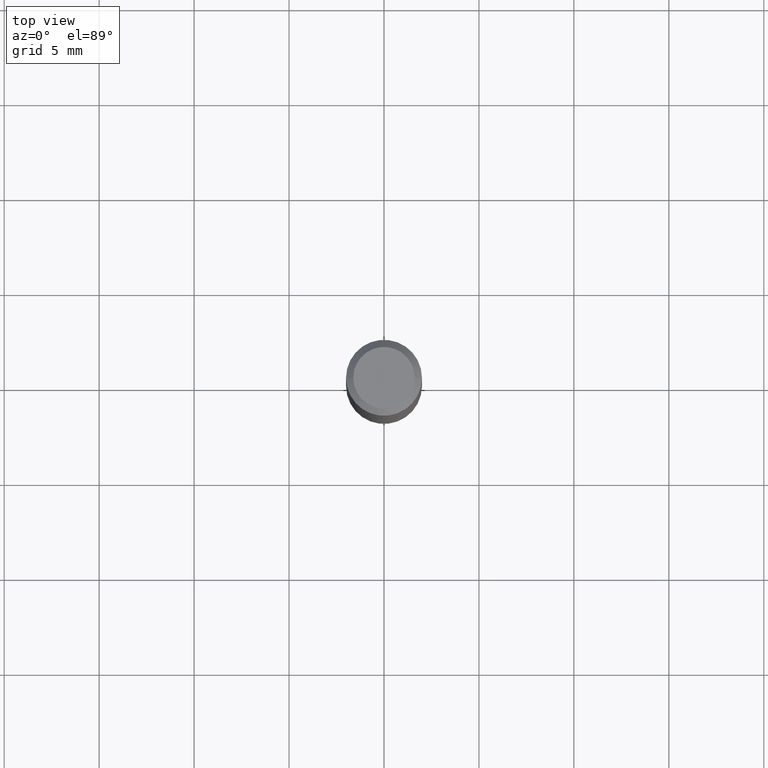
[diagram: clean part render]
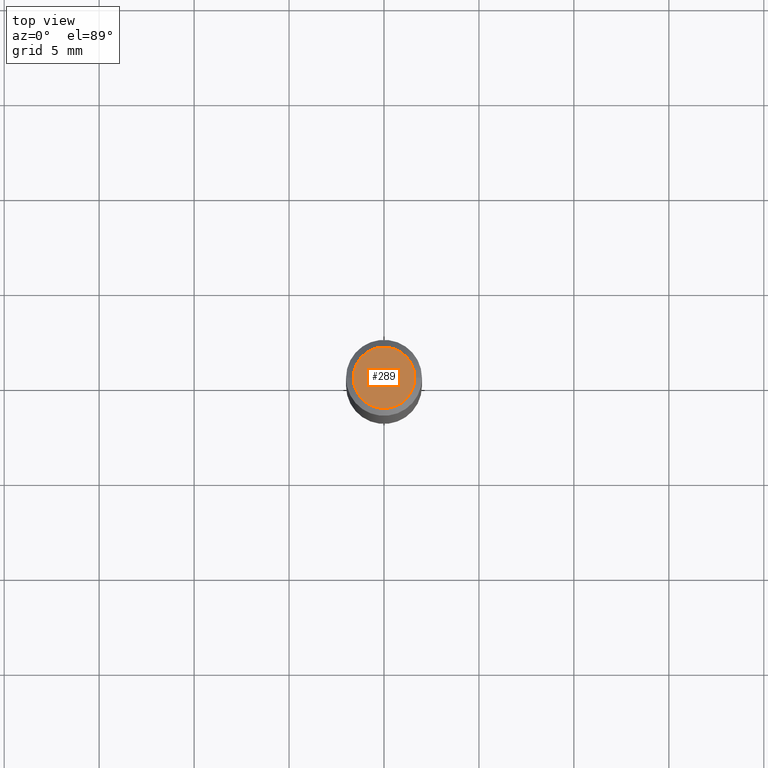
[diagram: same view with one face highlighted and labeled with its STEP entity id]
A machine part, top view. The second image highlights one B-rep face of the part: STEP entity #289.
In plain terms, the highlighted planar face has unit normal (0, -0, -1).
Its self-contained STEP definition (entity closure, byte-faithful):
#6 = DIRECTION ( 'NONE',  ( 1.000000000000000000, -6.982962677686265922E-15, 4.876524793569656819E-29 ) ) ;
#12 = DIRECTION ( 'NONE',  ( 1.000000000000000000, -6.982962677686265922E-15, 4.876524793569656819E-29 ) ) ;
#13 = EDGE_LOOP ( 'NONE', ( #429, #138 ) ) ;
#22 = AXIS2_PLACEMENT_3D ( 'NONE', #331, #221, #447 ) ;
#28 = EDGE_CURVE ( 'NONE', #227, #253, #137, .T. ) ;
#38 = CARTESIAN_POINT ( 'NONE',  ( 8.203589851528197750E-46, -1.171255213139091292E-31, -3.354608257843848654E-17 ) ) ;
#110 = PLANE ( 'NONE',  #22 ) ;
#137 = CIRCLE ( 'NONE', #293, 0.06375000000000000111 ) ;
#138 = ORIENTED_EDGE ( 'NONE', *, *, #273, .T. ) ;
#176 = AXIS2_PLACEMENT_3D ( 'NONE', #334, #298, #12 ) ;
#179 = DIRECTION ( 'NONE',  ( -2.445468806185136597E-29, 3.491481338843145583E-15, 1.000000000000000000 ) ) ;
#213 = CARTESIAN_POINT ( 'NONE',  ( 0.06375000000000000111, -5.149965923825452265E-16, -3.354608257843512772E-17 ) ) ;
#221 = DIRECTION ( 'NONE',  ( 2.438088387897960049E-29, -3.491481338843145188E-15, -1.000000000000000000 ) ) ;
#227 = VERTEX_POINT ( 'NONE', #439 ) ;
#253 = VERTEX_POINT ( 'NONE', #213 ) ;
#273 = EDGE_CURVE ( 'NONE', #253, #227, #307, .T. ) ;
#289 = ADVANCED_FACE ( 'NONE', ( #364 ), #110, .F. ) ;
#293 = AXIS2_PLACEMENT_3D ( 'NONE', #38, #179, #6 ) ;
#298 = DIRECTION ( 'NONE',  ( -2.445468806185136597E-29, 3.491481338843145583E-15, 1.000000000000000000 ) ) ;
#307 = CIRCLE ( 'NONE', #176, 0.06375000000000000111 ) ;
#331 = CARTESIAN_POINT ( 'NONE',  ( 4.451638707024994831E-16, 0.06375000000000000111, -2.393549766404698045E-16 ) ) ;
#334 = CARTESIAN_POINT ( 'NONE',  ( 8.203589851528197750E-46, -1.171255213139091292E-31, -3.354608257843848654E-17 ) ) ;
#364 = FACE_OUTER_BOUND ( 'NONE', #13, .T. ) ;
#429 = ORIENTED_EDGE ( 'NONE', *, *, #28, .T. ) ;
#439 = CARTESIAN_POINT ( 'NONE',  ( -0.06375000000000000111, 4.713499807438228255E-16, -3.354608257844169129E-17 ) ) ;
#447 = DIRECTION ( 'NONE',  ( -1.000000000000000000, 6.982962677686265922E-15, -4.876176775795935793E-29 ) ) ;